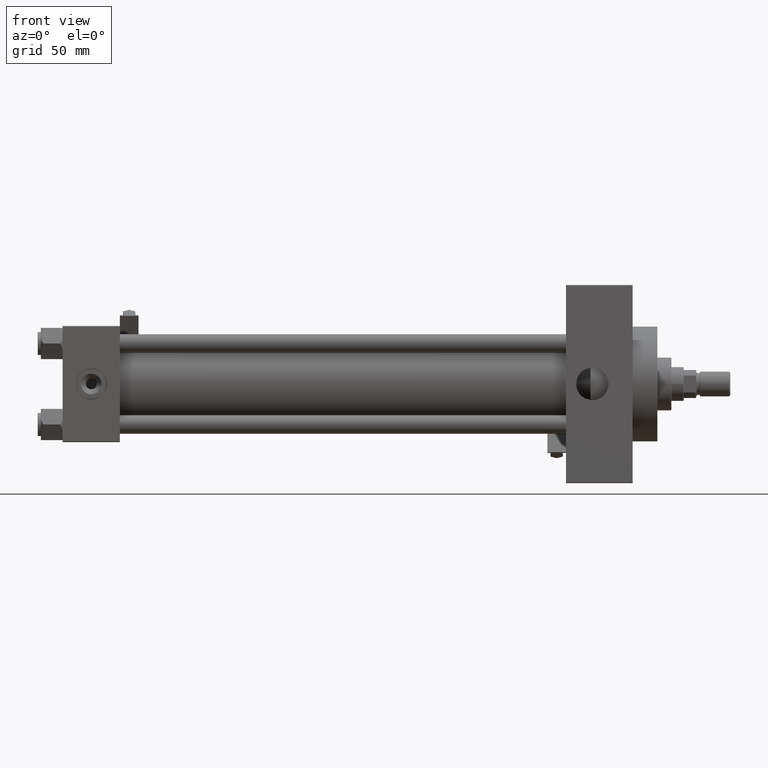
[diagram: clean part render]
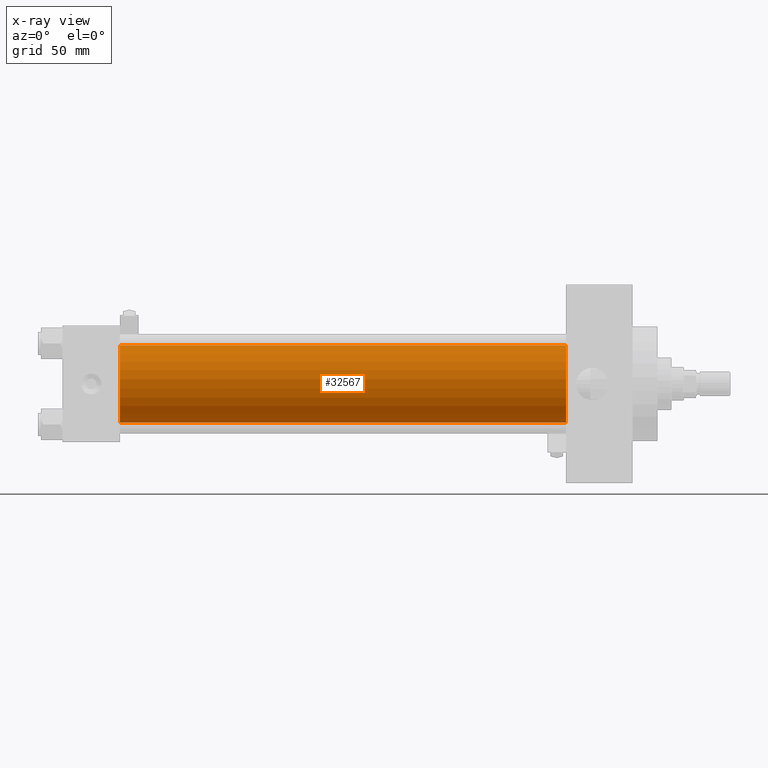
[diagram: x-ray — body ghosted, one internal face saturated and labeled with its STEP entity id]
A machine part, front view, then the same camera in x-ray: the body is ghosted and one INTERNAL B-rep face — a face not visible from any outside direction — is saturated and labeled: STEP entity #32567.
In plain terms, the highlighted cylindrical surface (partial cylindrical patch) has radius 25 mm, axis along (-1, -0, -0).
Its self-contained STEP definition (entity closure, byte-faithful):
#653 = CARTESIAN_POINT ( 'NONE',  ( 37.00000000000000000, -2.602085213965210642E-15, 0.000000000000000000 ) ) ;
#1417 = CYLINDRICAL_SURFACE ( 'NONE', #33239, 25.00000000000000000 ) ;
#7425 = VERTEX_POINT ( 'NONE', #27430 ) ;
#8746 = CARTESIAN_POINT ( 'NONE',  ( 324.9999999999999432, -2.602085213965210642E-15, 25.00000000000000000 ) ) ;
#12128 = CARTESIAN_POINT ( 'NONE',  ( 324.9999999999999432, -2.602085213965210642E-15, 25.00000000000000000 ) ) ;
#12789 = DIRECTION ( 'NONE',  ( 1.000000000000000000, 0.000000000000000000, 0.000000000000000000 ) ) ;
#13544 = DIRECTION ( 'NONE',  ( -1.000000000000000000, -0.000000000000000000, -0.000000000000000000 ) ) ;
#14725 = LINE ( 'NONE', #26359, #41525 ) ;
#15439 = EDGE_CURVE ( 'NONE', #38210, #17492, #40068, .T. ) ;
#17492 = VERTEX_POINT ( 'NONE', #41905 ) ;
#18176 = ORIENTED_EDGE ( 'NONE', *, *, #39480, .T. ) ;
#18883 = EDGE_CURVE ( 'NONE', #38210, #34455, #50581, .T. ) ;
#21281 = CARTESIAN_POINT ( 'NONE',  ( 324.9999999999999432, -2.602085213965210642E-15, 0.000000000000000000 ) ) ;
#22167 = EDGE_CURVE ( 'NONE', #34455, #7425, #26368, .T. ) ;
#22239 = AXIS2_PLACEMENT_3D ( 'NONE', #653, #31880, #28017 ) ;
#24579 = VECTOR ( 'NONE', #27378, 1000.000000000000000 ) ;
#26359 = CARTESIAN_POINT ( 'NONE',  ( 324.9999999999999432, 4.595317839031724996E-16, -25.00000000000000000 ) ) ;
#26368 = CIRCLE ( 'NONE', #22239, 25.00000000000000000 ) ;
#26706 = CARTESIAN_POINT ( 'NONE',  ( 37.00000000000000000, -2.602085213965210642E-15, 25.00000000000000000 ) ) ;
#27378 = DIRECTION ( 'NONE',  ( -1.000000000000000000, -0.000000000000000000, -0.000000000000000000 ) ) ;
#27430 = CARTESIAN_POINT ( 'NONE',  ( 37.00000000000000000, 4.595317839031724996E-16, -25.00000000000000000 ) ) ;
#28017 = DIRECTION ( 'NONE',  ( 0.000000000000000000, 0.000000000000000000, -1.000000000000000000 ) ) ;
#28528 = DIRECTION ( 'NONE',  ( 0.000000000000000000, 0.000000000000000000, -1.000000000000000000 ) ) ;
#31880 = DIRECTION ( 'NONE',  ( 1.000000000000000000, 0.000000000000000000, 0.000000000000000000 ) ) ;
#32567 = ADVANCED_FACE ( 'NONE', ( #36755 ), #1417, .F. ) ;
#33239 = AXIS2_PLACEMENT_3D ( 'NONE', #21281, #13544, #37015 ) ;
#34455 = VERTEX_POINT ( 'NONE', #26706 ) ;
#36263 = CARTESIAN_POINT ( 'NONE',  ( 324.9999999999999432, -2.602085213965210642E-15, 0.000000000000000000 ) ) ;
#36755 = FACE_OUTER_BOUND ( 'NONE', #46001, .T. ) ;
#37015 = DIRECTION ( 'NONE',  ( 0.000000000000000000, 0.000000000000000000, 1.000000000000000000 ) ) ;
#37629 = AXIS2_PLACEMENT_3D ( 'NONE', #36263, #12789, #28528 ) ;
#37958 = DIRECTION ( 'NONE',  ( -1.000000000000000000, -0.000000000000000000, -0.000000000000000000 ) ) ;
#38210 = VERTEX_POINT ( 'NONE', #8746 ) ;
#39057 = ORIENTED_EDGE ( 'NONE', *, *, #18883, .F. ) ;
#39480 = EDGE_CURVE ( 'NONE', #17492, #7425, #14725, .T. ) ;
#40068 = CIRCLE ( 'NONE', #37629, 25.00000000000000000 ) ;
#41525 = VECTOR ( 'NONE', #37958, 1000.000000000000000 ) ;
#41905 = CARTESIAN_POINT ( 'NONE',  ( 324.9999999999999432, 4.595317839031724996E-16, -25.00000000000000000 ) ) ;
#44496 = ORIENTED_EDGE ( 'NONE', *, *, #22167, .F. ) ;
#46001 = EDGE_LOOP ( 'NONE', ( #48542, #18176, #44496, #39057 ) ) ;
#48542 = ORIENTED_EDGE ( 'NONE', *, *, #15439, .T. ) ;
#50581 = LINE ( 'NONE', #12128, #24579 ) ;